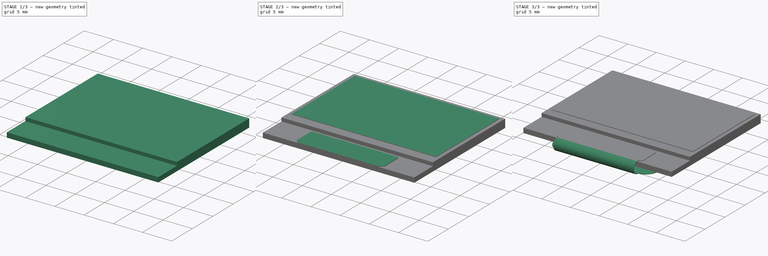
[diagram: build sequence overview — one tinted view per stage of 3, left to right]
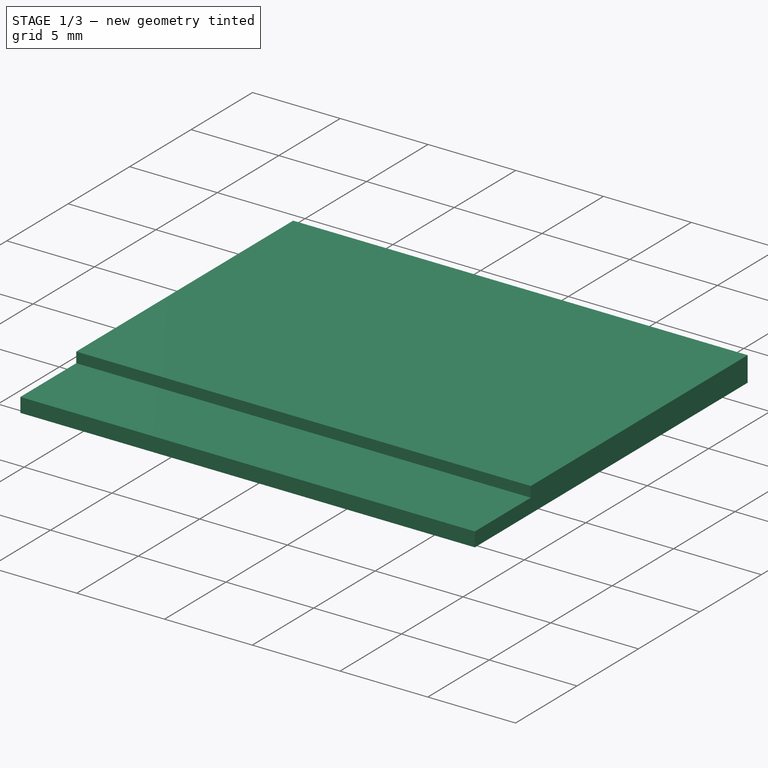
[diagram: stage 1 of 3 — iso view after this stage's code; geometry added in this stage tinted green]
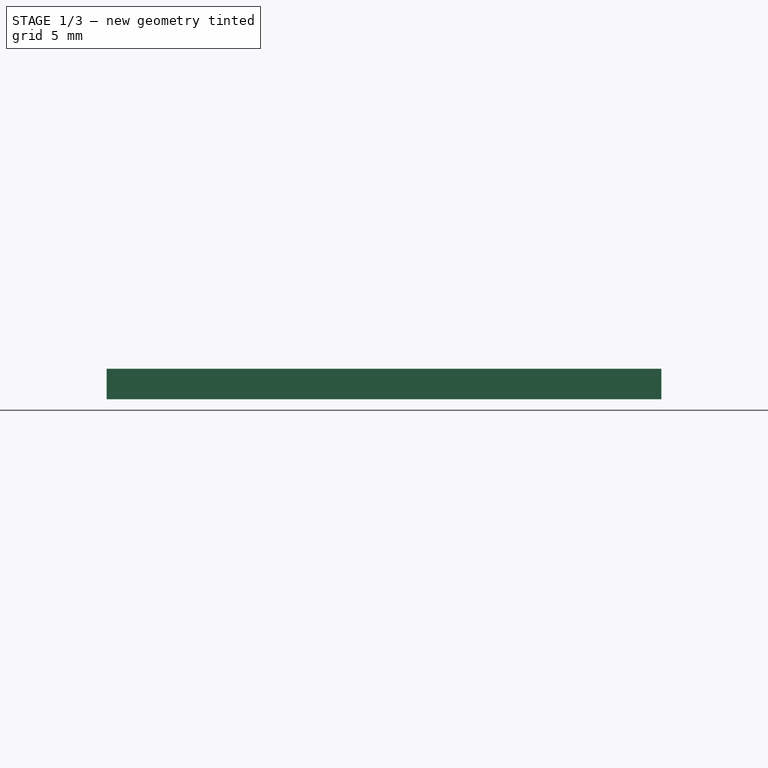
[diagram: stage 1 of 3 — front view after this stage's code; geometry added in this stage tinted green]
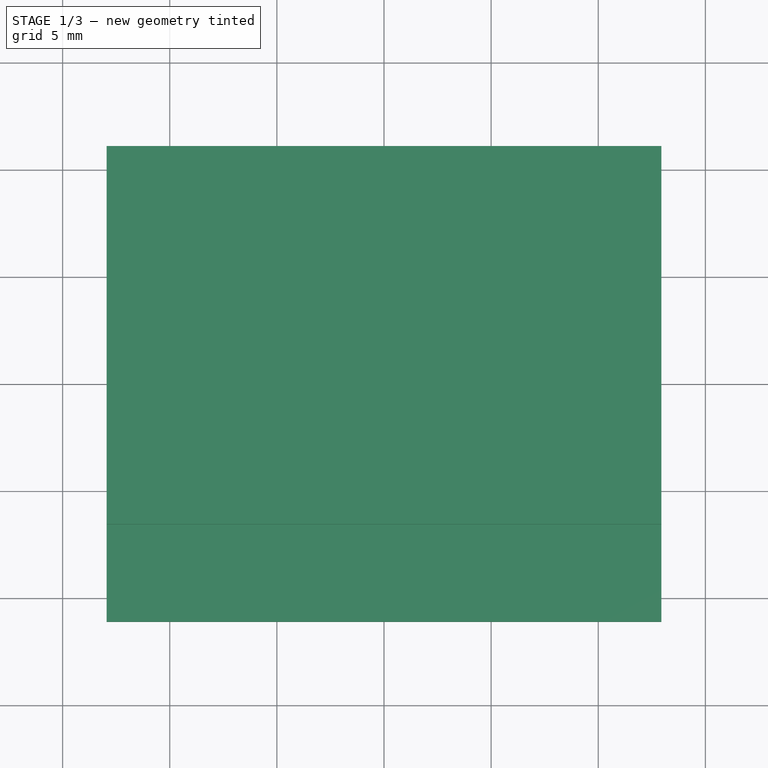
[diagram: stage 1 of 3 — top view after this stage's code; geometry added in this stage tinted green]
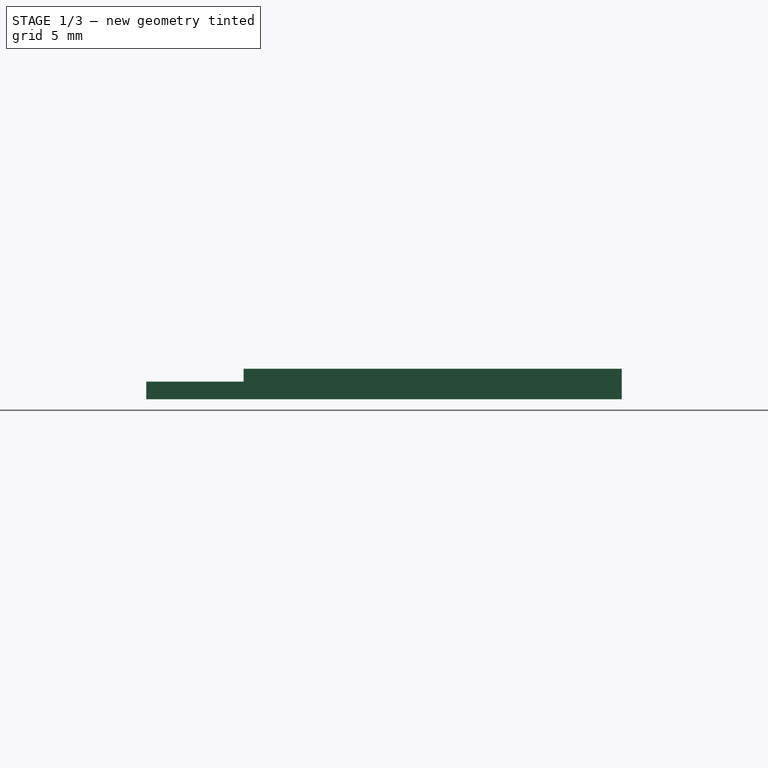
[diagram: stage 1 of 3 — right view after this stage's code; geometry added in this stage tinted green]
FCSTD DOCUMENT  (FreeCAD 0.18.1R)
Label: Ecran_SSD1331
License: All rights reserved
LicenseURL: http://en.wikipedia.org/wiki/All_rights_reserved
objects: Sketcher::SketchObject×6, PartDesign::Pad×6, PartDesign::Body×1
note: 19 computed .brp shape members not serialized (recipe doc carries the construction recipe); baked Part::Feature solids carry a one-line shape summary decoded from their .brp

FEATURE [Sketcher::SketchObject] Sketch
  MapMode = 5
  Support = -> [XY_Plane]
  sketch-geometry (4):
    g0: LineSegment StartX=-12.95 StartY=11.1 StartZ=0 EndX=12.95 EndY=11.1 EndZ=0
    g1: LineSegment StartX=12.95 StartY=11.1 StartZ=0 EndX=12.95 EndY=-11.1 EndZ=0
    g2: LineSegment StartX=12.95 StartY=-11.1 StartZ=0 EndX=-12.95 EndY=-11.1 EndZ=0
    g3: LineSegment StartX=-12.95 StartY=-11.1 StartZ=0 EndX=-12.95 EndY=11.1 EndZ=0
  constraints (10):
    c: Coincident(g0,g1)
    c: Coincident(g1,g2)
    c: Coincident(g2,g3)
    c: Coincident(g3,g0)
    c: Horizontal(g0)
    c: Vertical(g3)
    c: Symmetric(g1,g2,g-2)
    c: Symmetric(g0,g1,g-1)
    c: DistanceX(g0,g0) = 25.9
    c: DistanceY(g3,g3) = 22.2
FEATURE [PartDesign::Pad] Pad
  Length = 0.82
  Length2 = 100
  Profile = -> Sketch
  Type = 0
FEATURE [Sketcher::SketchObject] Sketch001
  MapMode = 5
  Placement = pos=(0,0,0.82) rot=(0,0,1;0rad)
  Support = -> [Pad]
  sketch-geometry (4):
    g0: LineSegment StartX=-12.95 StartY=11.1 StartZ=0 EndX=12.95 EndY=11.1 EndZ=0
    g1: LineSegment StartX=12.95 StartY=11.1 StartZ=0 EndX=12.95 EndY=-6.55 EndZ=0
    g2: LineSegment StartX=12.95 StartY=-6.55 StartZ=0 EndX=-12.95 EndY=-6.55 EndZ=0
    g3: LineSegment StartX=-12.95 StartY=-6.55 StartZ=0 EndX=-12.95 EndY=11.1 EndZ=0
  constraints (11):
    c: Coincident(g0,g1)
    c: Coincident(g1,g2)
    c: Coincident(g2,g3)
    c: Coincident(g3,g0)
    c: Horizontal(g2)
    c: Vertical(g1)
    c: Vertical(g3)
    c: Symmetric(g0,g0,g-2)
    c: DistanceX(g0,g0) = 25.9
    c: DistanceY(g3,g3) = 17.65
    c: DistanceY(g-1,g0) = 11.1
FEATURE [PartDesign::Pad] Pad001
  BaseFeature = -> Pad
  Length = 0.6
  Length2 = 100
  Profile = -> Sketch001
  Type = 0
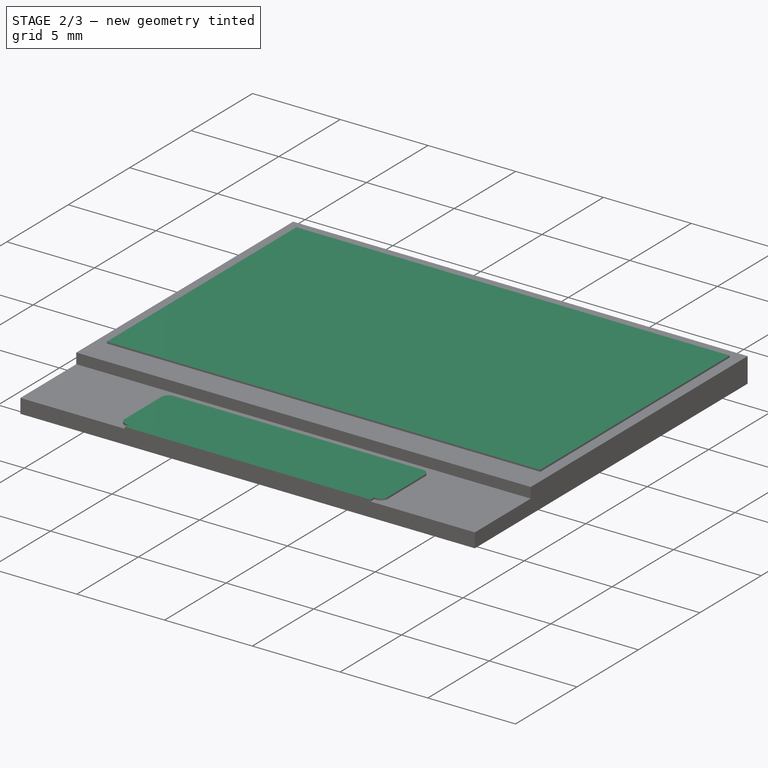
[diagram: stage 2 of 3 — iso view after this stage's code; geometry added in this stage tinted green]
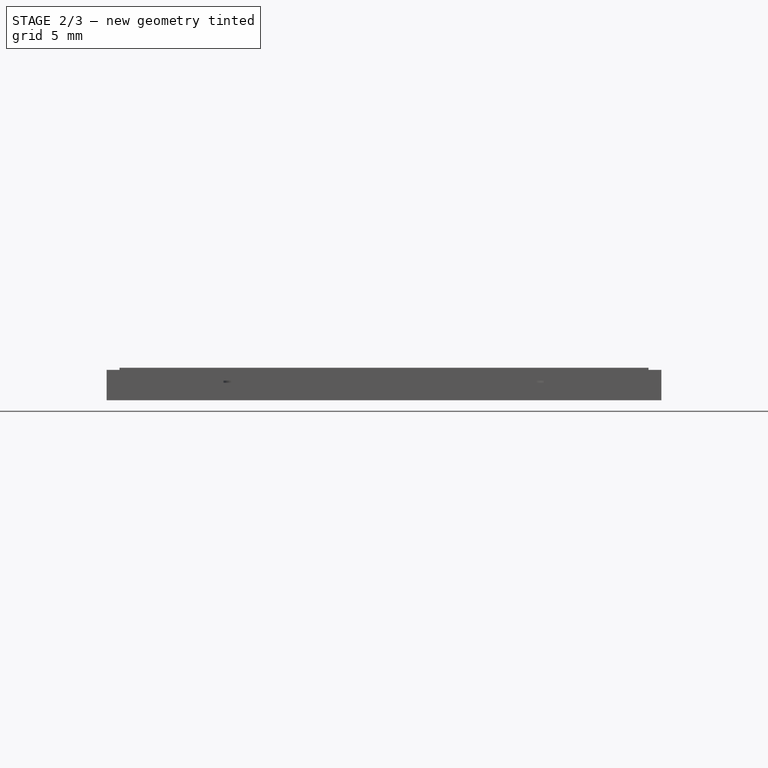
[diagram: stage 2 of 3 — front view after this stage's code; geometry added in this stage tinted green]
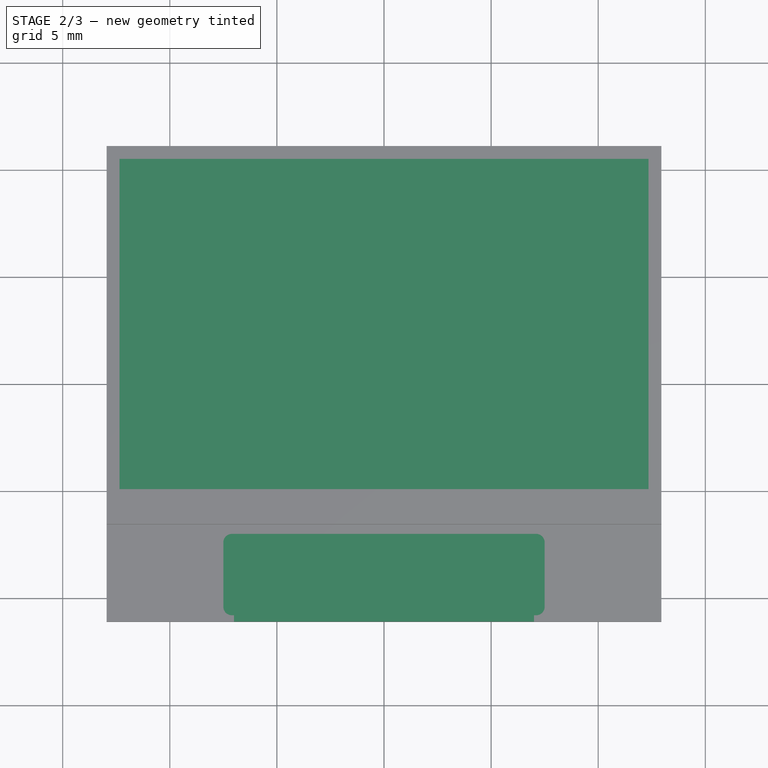
[diagram: stage 2 of 3 — top view after this stage's code; geometry added in this stage tinted green]
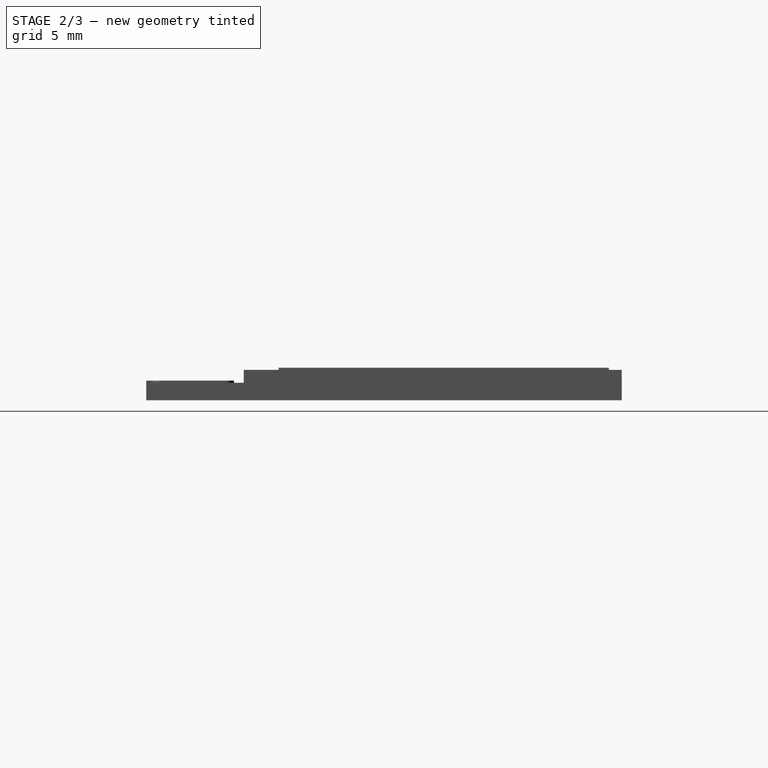
[diagram: stage 2 of 3 — right view after this stage's code; geometry added in this stage tinted green]
FEATURE [Sketcher::SketchObject] Sketch002
  MapMode = 5
  Placement = pos=(0,0,1.42) rot=(0,0,1;0rad)
  Support = -> [Pad001]
  sketch-geometry (4):
    g0: LineSegment StartX=-12.35 StartY=10.5 StartZ=0 EndX=12.35 EndY=10.5 EndZ=0
    g1: LineSegment StartX=12.35 StartY=10.5 StartZ=0 EndX=12.35 EndY=-4.92 EndZ=0
    g2: LineSegment StartX=12.35 StartY=-4.92 StartZ=0 EndX=-12.35 EndY=-4.92 EndZ=0
    g3: LineSegment StartX=-12.35 StartY=-4.92 StartZ=0 EndX=-12.35 EndY=10.5 EndZ=0
  constraints (11):
    c: Coincident(g0,g1)
    c: Coincident(g1,g2)
    c: Coincident(g2,g3)
    c: Coincident(g3,g0)
    c: Horizontal(g2)
    c: Vertical(g1)
    c: Vertical(g3)
    c: Symmetric(g0,g0,g-2)
    c: DistanceX(g0,g0) = 24.7
    c: DistanceY(g3,g3) = 15.42
    c: DistanceY(g-1,g0) = 10.5
FEATURE [PartDesign::Pad] Pad002
  BaseFeature = -> Pad001
  Length = 0.1
  Length2 = 100
  Profile = -> Sketch002
  Type = 0
FEATURE [Sketcher::SketchObject] Sketch003
  MapMode = 5
  Placement = pos=(0,0,0.82) rot=(0,0,1;0rad)
  Support = -> [Pad002]
  sketch-geometry (12):
    g0: LineSegment StartX=-7.1 StartY=-7 StartZ=0 EndX=7.1 EndY=-7 EndZ=0
    g1: LineSegment StartX=7.5 StartY=-7.4 StartZ=0 EndX=7.5 EndY=-10.4 EndZ=0
    g2: LineSegment StartX=-7.5 StartY=-10.4 StartZ=0 EndX=-7.5 EndY=-7.4 EndZ=0
    g3: ArcOfCircle CenterX=-7.1 CenterY=-7.4 CenterZ=0 NormalX=0 NormalY=0 NormalZ=1 AngleXU=0 Radius=0.4 StartAngle=1.5708 EndAngle=3.14159
    g4: ArcOfCircle CenterX=7.1 CenterY=-7.4 CenterZ=0 NormalX=0 NormalY=0 NormalZ=1 AngleXU=0 Radius=0.4 StartAngle=5e-16 EndAngle=1.5708
    g5: ArcOfCircle CenterX=7.1 CenterY=-10.4 CenterZ=0 NormalX=0 NormalY=0 NormalZ=1 AngleXU=0 Radius=0.4 StartAngle=4.71239 EndAngle=6.28319
    g6: ArcOfCircle CenterX=-7.1 CenterY=-10.4 CenterZ=0 NormalX=0 NormalY=0 NormalZ=1 AngleXU=0 Radius=0.4 StartAngle=3.14159 EndAngle=4.71239
    g7: LineSegment StartX=7 StartY=-10.8 StartZ=0 EndX=7 EndY=-11.1 EndZ=0
    g8: LineSegment StartX=7 StartY=-11.1 StartZ=0 EndX=-7 EndY=-11.1 EndZ=0
    g9: LineSegment StartX=-7 StartY=-11.1 StartZ=0 EndX=-7 EndY=-10.8 EndZ=0
    g10: LineSegment StartX=7.1 StartY=-10.8 StartZ=0 EndX=7 EndY=-10.8 EndZ=0
    g11: LineSegment StartX=-7 StartY=-10.8 StartZ=0 EndX=-7.1 EndY=-10.8 EndZ=0
  constraints (30):
    c: Vertical(g1)
    c: Vertical(g2)
    c: Tangent(g2,g3) = 1.5708
    c: Tangent(g0,g3) = 1.5708
    c: Tangent(g0,g4) = 1.5708
    c: Tangent(g1,g4) = 1.5708
    c: Tangent(g1,g5) = 1.5708
    c: Tangent(g2,g6) = 1.5708
    c: Radius(g6) = 0.4
    c: Equal(g6,g3)
    c: Equal(g6,g4)
    c: Equal(g6,g5)
    c: Symmetric(g0,g0,g-2)
    c: DistanceY(g0,g-1) = 7
    c: Coincident(g7,g8)
    c: Coincident(g8,g9)
    c: Vertical(g7)
    c: Vertical(g9)
    c: DistanceY(g5,g0) = 3.8
    c: Coincident(g10,g7)
    c: Coincident(g11,g9)
    c: Horizontal(g11)
    c: Horizontal(g10)
    c: Symmetric(g7,g8,g-2)
    c: DistanceX(g8,g8) = 14
    c: DistanceY(g7,g7) = 0.3
    c: DistanceX(g2,g1) = 15
    c: Tangent(g10,g5) = 1.5708
    c: Tangent(g11,g6) = 1.5708
    c: Horizontal(g7,g9)
FEATURE [PartDesign::Pad] Pad003
  BaseFeature = -> Pad002
  Length = 0.1
  Length2 = 100
  Profile = -> Sketch003
  Type = 0
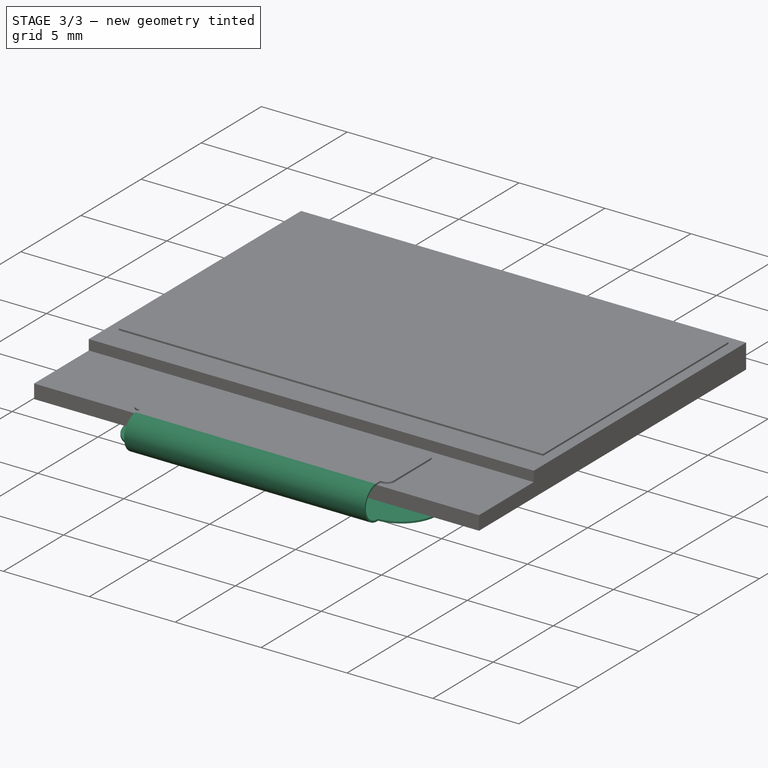
[diagram: stage 3 of 3 — iso view after this stage's code; geometry added in this stage tinted green]
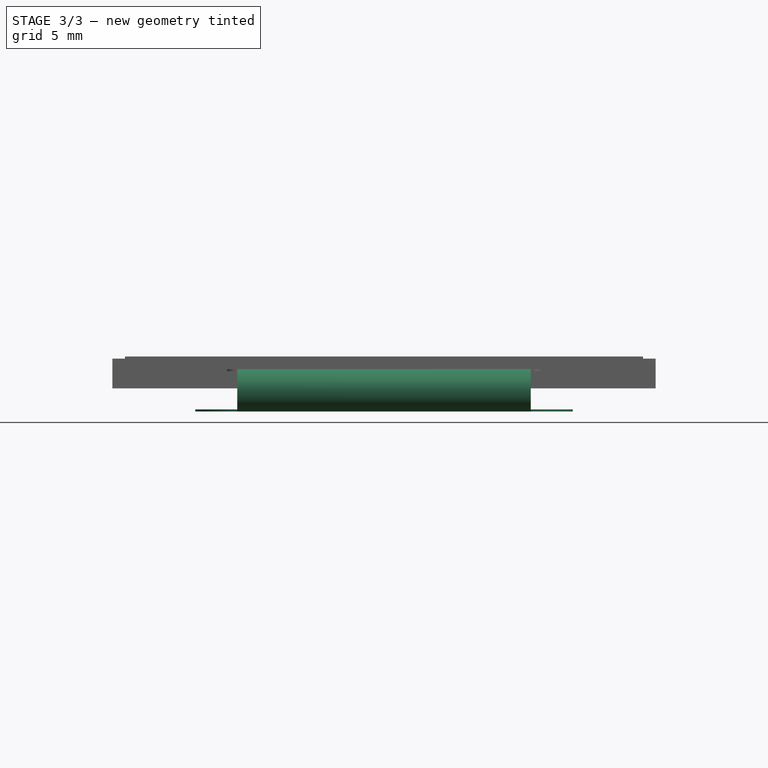
[diagram: stage 3 of 3 — front view after this stage's code; geometry added in this stage tinted green]
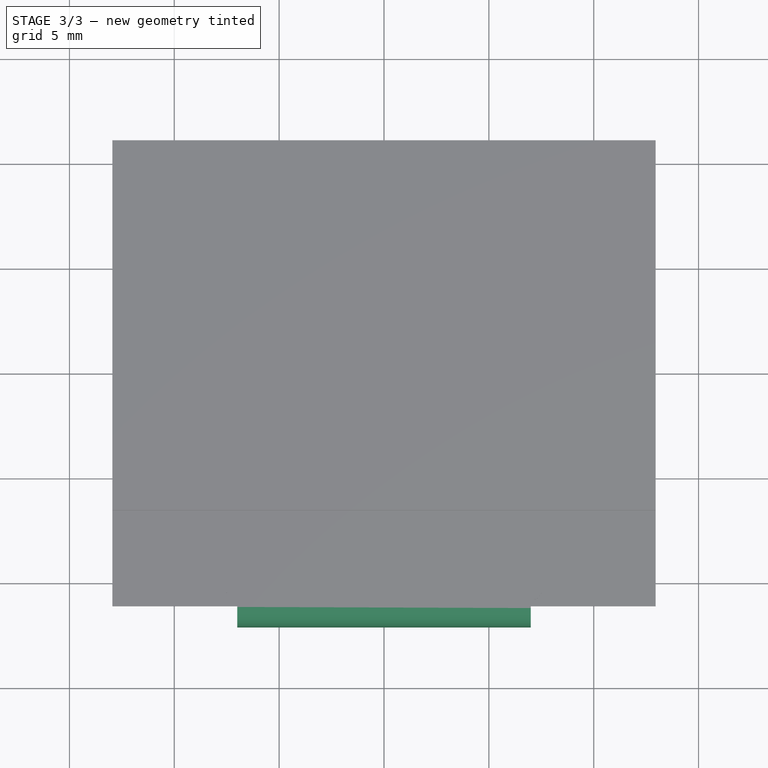
[diagram: stage 3 of 3 — top view after this stage's code; geometry added in this stage tinted green]
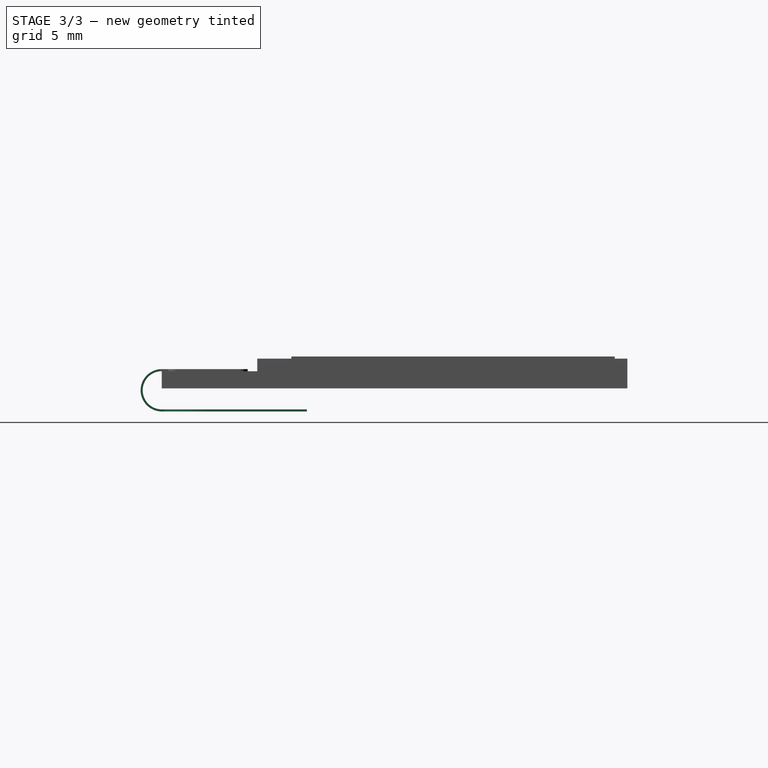
[diagram: stage 3 of 3 — right view after this stage's code; geometry added in this stage tinted green]
FEATURE [Sketcher::SketchObject] Sketch004
  MapMode = 5
  Placement = pos=(0,0,0) rot=(0.57735,0.57735,0.57735;2.0944rad)
  Support = -> [YZ_Plane]
  sketch-geometry (6):
    g0: ArcOfCircle CenterX=-11.1 CenterY=-0.09 CenterZ=0 NormalX=0 NormalY=0 NormalZ=1 AngleXU=0 Radius=0.91 StartAngle=1.5708 EndAngle=4.71239
    g1: ArcOfCircle CenterX=-11.1 CenterY=-0.09 CenterZ=0 NormalX=0 NormalY=0 NormalZ=1 AngleXU=0 Radius=1.01 StartAngle=1.5708 EndAngle=4.71239
    g2: LineSegment StartX=-11.1 StartY=-1 StartZ=0 EndX=-4.18 EndY=-1 EndZ=0
    g3: LineSegment StartX=-4.18 StartY=-1 StartZ=0 EndX=-4.18 EndY=-1.1 EndZ=0
    g4: LineSegment StartX=-11.1 StartY=-1.1 StartZ=0 EndX=-4.18 EndY=-1.1 EndZ=0
    g5: LineSegment StartX=-11.1 StartY=0.82 StartZ=0 EndX=-11.1 EndY=0.92 EndZ=0
  constraints (17):
    c: Coincident(g1,g0)
    c: Horizontal(g2)
    c: Coincident(g3,g2)
    c: Vertical(g3)
    c: Coincident(g4,g3)
    c: Horizontal(g4)
    c: Coincident(g5,g0)
    c: Coincident(g5,g1)
    c: Vertical(g5)
    c: DistanceY(g5,g5) = 0.1
    c: DistanceX(g0,g-1) = 11.1
    c: DistanceY(g-1,g0) = -1
    c: DistanceY(g-1,g0) = 0.82
    c: DistanceX(g4,g4) = 6.92
    c: Tangent(g4,g1) = -1.5708
    c: Tangent(g2,g0) = -1.5708
    c: Perpendicular(g0,g5)
FEATURE [PartDesign::Pad] Pad004
  BaseFeature = -> Pad003
  Length = 14
  Length2 = 100
  Midplane = true
  Profile = -> Sketch004
  Type = 0
FEATURE [Sketcher::SketchObject] Sketch005
  MapMode = 5
  Placement = pos=(3e-16,-2e-16,-1.1) rot=(1,0,0;3.14159rad)
  Support = -> [Pad004]
  sketch-geometry (6):
    g0: LineSegment StartX=-9 StartY=4.2 StartZ=0 EndX=9 EndY=4.2 EndZ=0
    g1: LineSegment StartX=9 StartY=4.2 StartZ=0 EndX=9 EndY=8.9 EndZ=0
    g2: LineSegment StartX=7 StartY=11 StartZ=0 EndX=-7 EndY=11 EndZ=0
    g3: LineSegment StartX=-9 StartY=8.9 StartZ=0 EndX=-9 EndY=4.2 EndZ=0
    g4: ArcOfCircle CenterX=-6.8975 CenterY=8.9 CenterZ=0 NormalX=0 NormalY=0 NormalZ=1 AngleXU=0 Radius=2.1025 StartAngle=1.61957 EndAngle=3.14159
    g5: ArcOfCircle CenterX=6.8975 CenterY=8.9 CenterZ=0 NormalX=0 NormalY=0 NormalZ=1 AngleXU=0 Radius=2.1025 StartAngle=5.31e-14 EndAngle=1.52203
  constraints (16):
    c: Coincident(g1,g0)
    c: Coincident(g3,g0)
    c: Distance(g2,g0) = 6.8
    c: Symmetric(g2,g2,g-2)
    c: Vertical(g3)
    c: DistanceY(g-1,g0) = 4.2
    c: DistanceY(g1,g1) = 4.7
    c: Equal(g3,g1)
    c: Symmetric(g0,g0,g-2)
    c: Vertical(g1)
    c: DistanceX(g0,g0) = 18
    c: DistanceX(g2,g2) = 14
    c: Coincident(g5,g2)
    c: Tangent(g4,g3) = -1.5708
    c: Tangent(g5,g1) = -1.5708
    c: Coincident(g4,g2)
FEATURE [PartDesign::Pad] Pad005
  BaseFeature = -> Pad004
  Length = 0.1
  Length2 = 100
  Profile = -> Sketch005
  Reversed = true
  Type = 0
FEATURE [PartDesign::Body] Body
  Group = -> [Sketch,Pad,Sketch001,Pad001,Sketch002,Pad002,Sketch003,Pad003,Sketch004,Pad004,Sketch005,Pad005]
  Origin = -> Origin
  Tip = -> Pad005
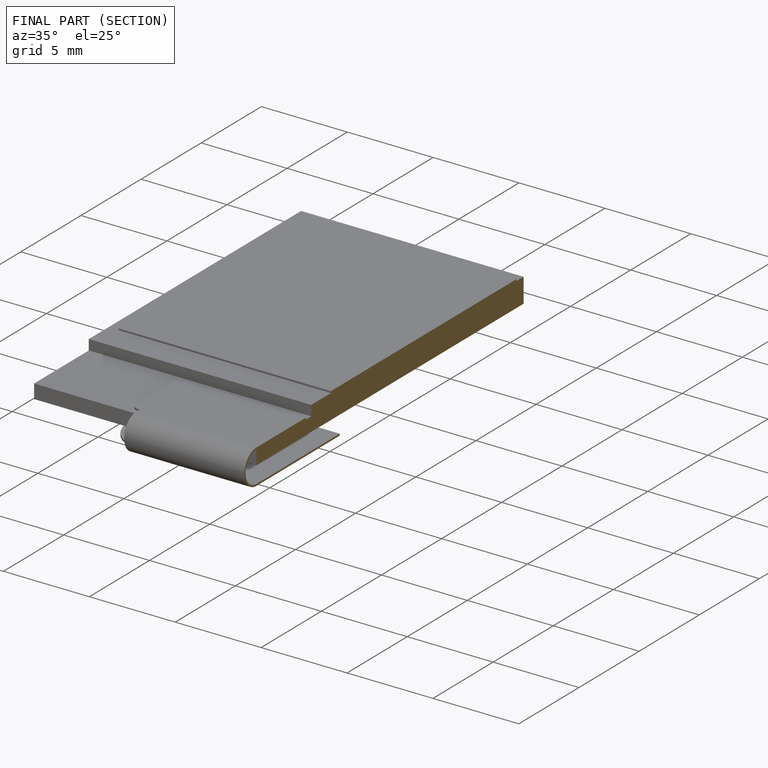
[diagram: finished part — half-section view (interior)]
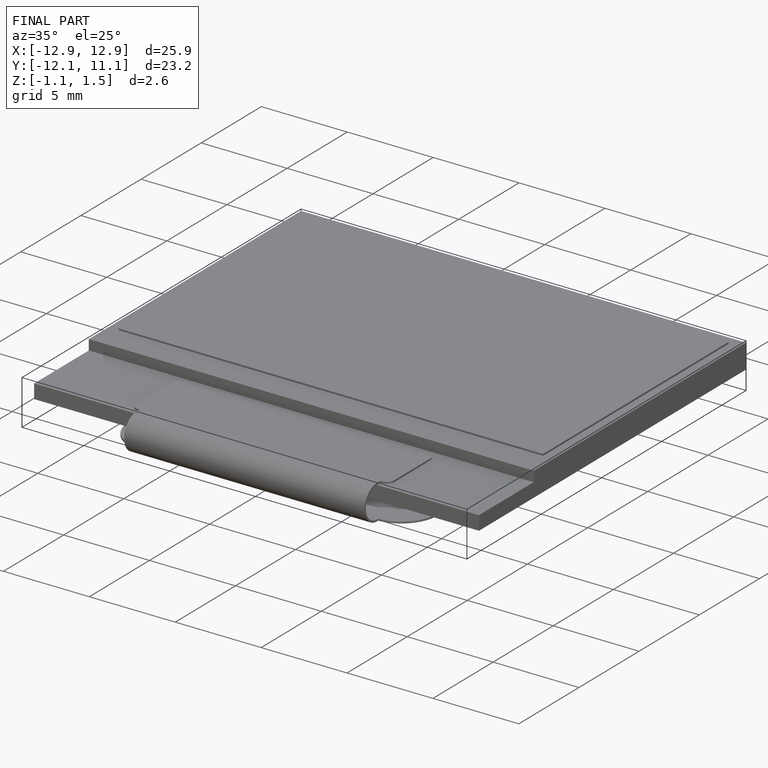
[diagram: finished part — iso view with bounding-box wireframe]
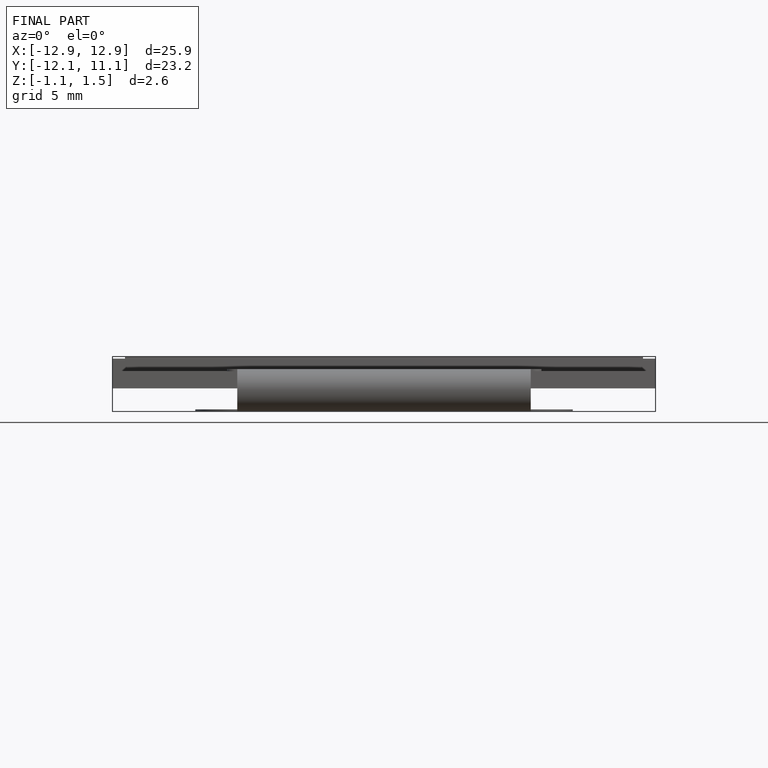
[diagram: finished part — front view with bounding-box wireframe]
